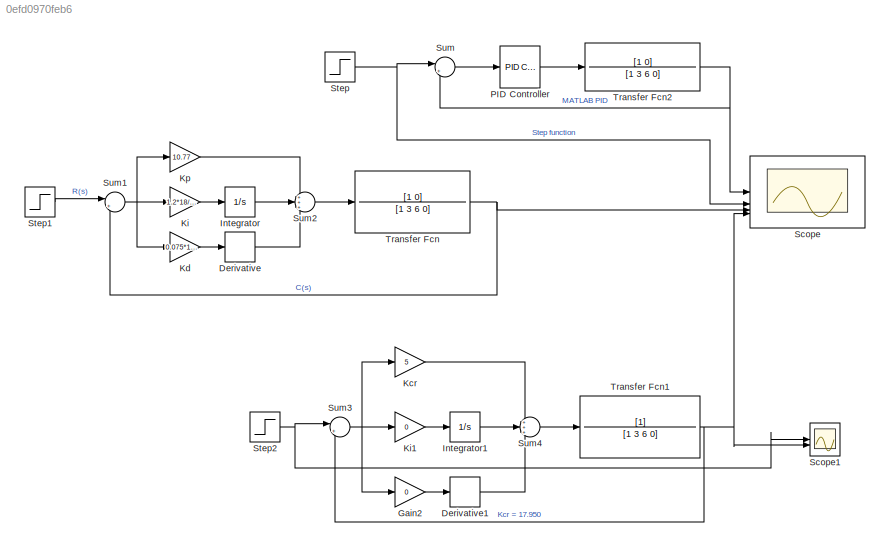
MODEL slx_0efd0970feb6
KIND model
CONFIG AbsTol = auto
CONFIG EnableMultiTasking = off
CONFIG FixedStep = auto
CONFIG MaxStep = auto
CONFIG MinStep = auto
CONFIG RelTol = 1e-3
CONFIG SampleTimeConstraint = Unconstrained
CONFIG SolverName = VariableStepAuto
CONFIG StartTime = 0.0
CONFIG StopTime = 15
BLOCK [Derivative] Derivative
BLOCK [Derivative] Derivative1
BLOCK [Gain] Gain2
  Gain = 0
BLOCK [Integrator] Integrator
BLOCK [Integrator] Integrator1
BLOCK [Gain] Kcr
  Gain = 5
BLOCK [Gain] Kd
  Gain = 0.075*18*2.56
BLOCK [Gain] Ki
  Gain = 1.2*18/2.56*1
BLOCK [Gain] Ki1
  Gain = 0
BLOCK [Gain] Kp
  Gain = 10.77
BLOCK [Reference] PID Controller  REF=slpidlib/PID Controller
  LibrarySourceBlock = simulink/Continuous/PID Controller
  SourceBlock = slpidlib/PID Controller
  SourceType = PID 1dof
BLOCK [Scope] Scope
  Floating = off
  NumInputPorts = 4
  ScopeSpecificationString = Simulink.scopes.TimeScopeBlockCfg('CurrentConfiguration', extmgr.ConfigurationSet(extmgr.Configuration('Core','General UI',true,'FigureColor',[0 0 0]),extmgr.Configuration('Core','Source UI',true),extmgr.Configuration('Sources','WiredSimulink',true),extmgr.Configuration('Visuals','Time Domain',true,'SerializedDisplays',{struct('MinYLimReal','-0.13132','MaxYLimReal','1.18184','YLabelReal','','MinYL...<+1842ch>
BLOCK [Scope] Scope1
  Floating = off
  NumInputPorts = 2
  ScopeSpecificationString = Simulink.scopes.TimeScopeBlockCfg('CurrentConfiguration', extmgr.ConfigurationSet(extmgr.Configuration('Core','General UI',true),extmgr.Configuration('Core','Source UI',true),extmgr.Configuration('Sources','WiredSimulink',true,'DataLoggingVariableName','ScopeData1'),extmgr.Configuration('Visuals','Time Domain',true,'SerializedDisplays',{struct('MinYLimReal','-0.14137','MaxYLimReal','1.27231','YLab...<+1675ch>
BLOCK [Step] Step
  SampleTime = 0
BLOCK [Step] Step1
  SampleTime = 0
BLOCK [Step] Step2
  SampleTime = 0
BLOCK [Sum] Sum
  Inputs = |+-
BLOCK [Sum] Sum1
  Inputs = |+-
BLOCK [Sum] Sum2
  Inputs = +++
BLOCK [Sum] Sum3
  Inputs = |+-
BLOCK [Sum] Sum4
  Inputs = +++
BLOCK [TransferFcn] Transfer Fcn
  Denominator = [1 3 6 0]
  Numerator = [1 0]
BLOCK [TransferFcn] Transfer Fcn1
  Denominator = [1 3 6 0]
BLOCK [TransferFcn] Transfer Fcn2
  Denominator = [1 3 6 0]
  Numerator = [1 0]
LINE Derivative1:1 -> Sum4:3
LINE Derivative:1 -> Sum2:3
LINE Gain2:1 -> Derivative1:1
LINE Integrator1:1 -> Sum4:2
LINE Integrator:1 -> Sum2:2
LINE Kcr:1 -> Sum4:1
LINE Kd:1 -> Derivative:1
LINE Ki1:1 -> Integrator1:1
LINE Ki:1 -> Integrator:1
LINE Kp:1 -> Sum2:1
LINE PID Controller:1 -> Transfer Fcn2:1
LINE Step1:1 -> Sum1:1
NET Step2:1 -> Scope1:1, Sum3:1
NET Step:1 -> Scope:2, Sum:1
NET Sum1:1 -> Kd:1, Ki:1, Kp:1
LINE Sum2:1 -> Transfer Fcn:1
NET Sum3:1 -> Gain2:1, Kcr:1, Ki1:1
LINE Sum4:1 -> Transfer Fcn1:1
LINE Sum:1 -> PID Controller:1
NET Transfer Fcn1:1 -> Scope1:2, Scope:4, Sum3:2
NET Transfer Fcn2:1 -> Scope:1, Sum:2
NET Transfer Fcn:1 -> Scope:3, Sum1:2
note: NET lines group one-source signal fan-out (src -> all destinations, sorted); 1:1 wires keep LINE
